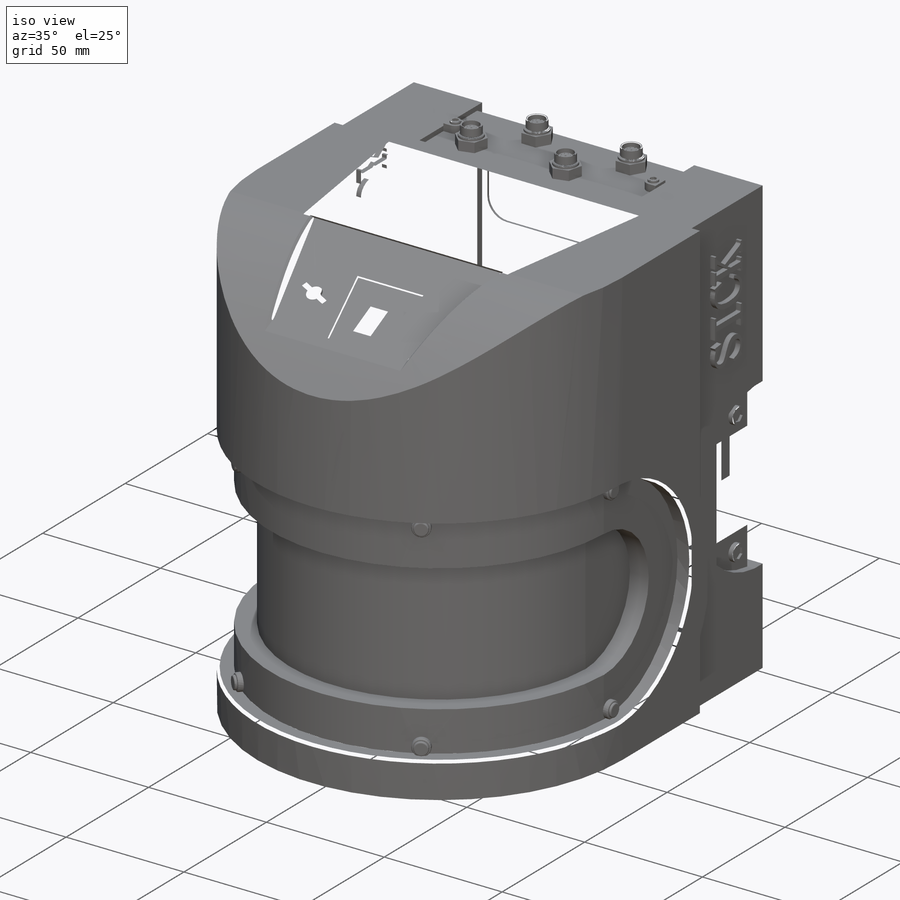
[diagram: iso view]
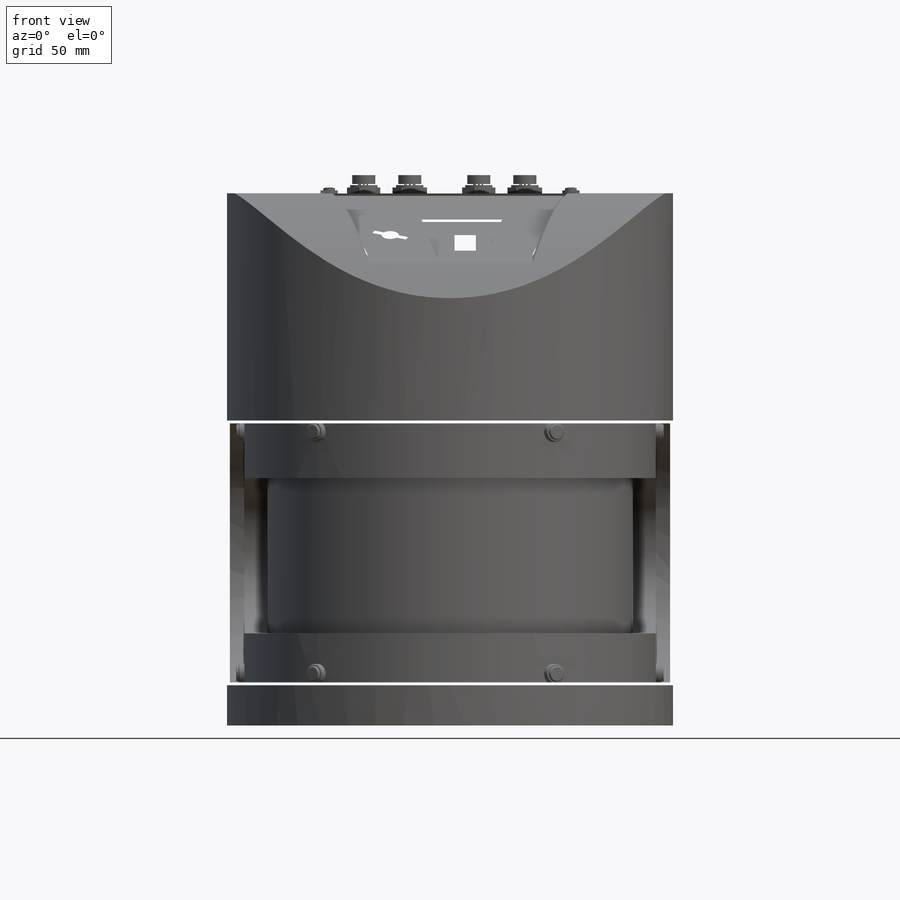
[diagram: front view]
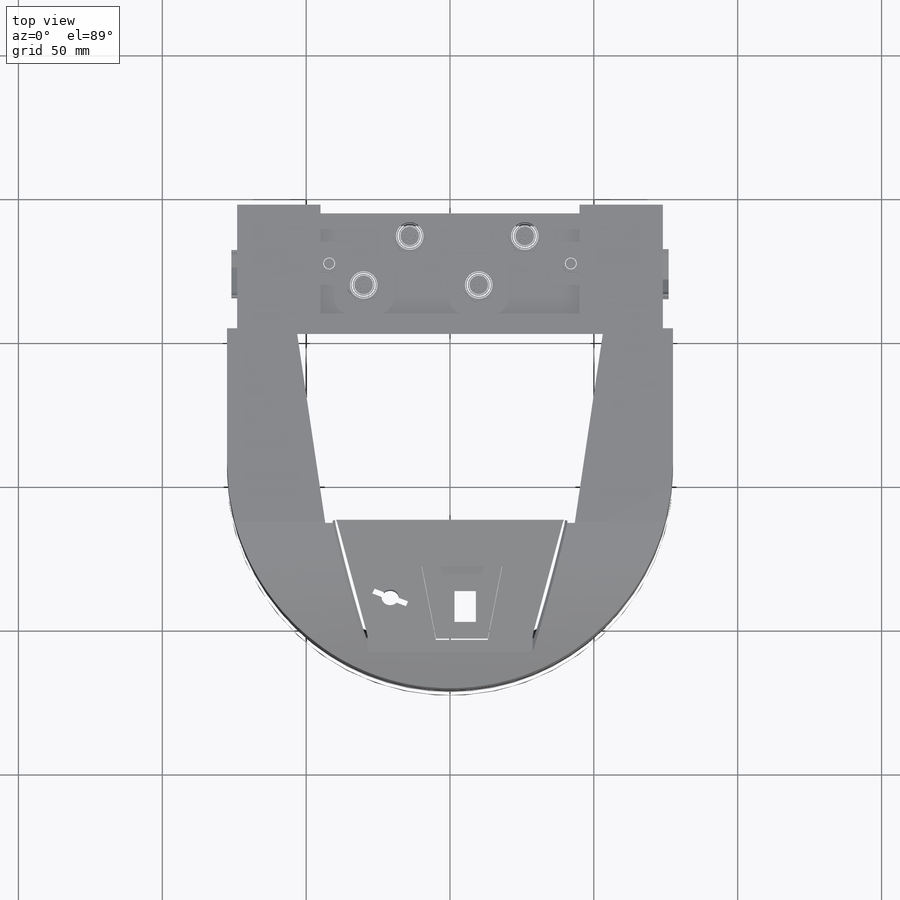
[diagram: top view]
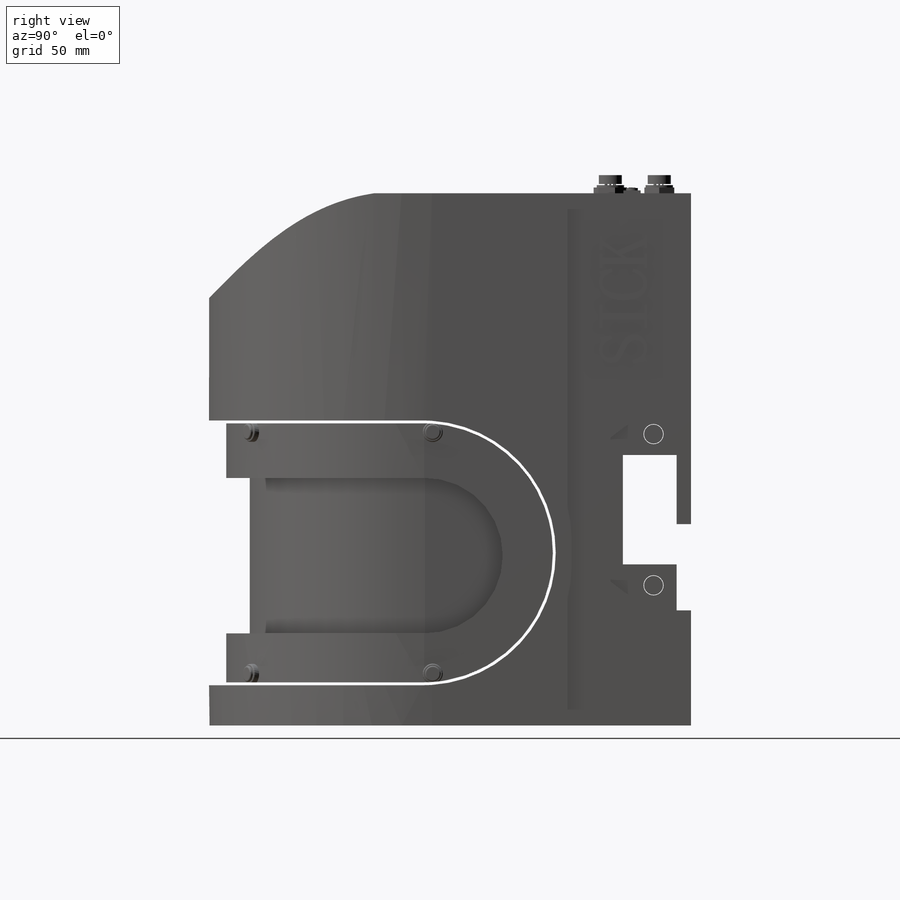
[diagram: right view]
SOLIDWORKS PART (.sldprt)
format: sldprt  version: not decoded by parser v0  size: 3,123,200 bytes
history: native  units: mm
features: sketch x66, extrude x31, cut_extrude x30, plane x11, pattern_linear x11, mirror x8, fillet x5, material x1, chamfer x1 (+10 scaffold rows collapsed)
feature tree (174):
  scaffold x10  (default folders/planes/origin — collapsed)
  material  "材质 <未指定>"
  plane  "前视基准面"
  plane  "上视基准面"
  plane  "右视基准面"
  sketch  "草图1"  dims[D1=155.0mm D2=90.0mm]
  extrude  "凸台-拉伸1"  Depth=185mm
  sketch  "草图2"
  extrude  "凸台-拉伸2"  Depth=185mm
  sketch  "草图3"  dims[D1=43.0mm D2=74.0mm D3=90.0mm]
  cut_extrude  "切除-拉伸1"  Depth=185mm
  sketch  "草图4"  dims[D1=40.0mm D2=70.0mm D3=24.0mm D4=40.0mm D5=60.0mm]
  cut_extrude  "切除-拉伸2"  Depth=5mm
  sketch  "草图5"  dims[D1=25.0mm D2=28.0mm]
  cut_extrude  "切除-拉伸3"  Depth=3mm
  mirror  "镜向1"
  sketch  "草图6"
  cut_extrude  "切除-拉伸4"  Depth=194mm
  sketch  "草图7"  dims[c1.D2=~104.045065mm c2.D2=~171.96219deg c3.D2=~105.077343mm c4.D2=5.0deg c4.D3=~106.402331mm c5.D3=5.0deg c5.D1=6.0mm c5.D4=6.0mm]
  cut_extrude  "切除-拉伸5"  Depth=90mm
  sketch  "草图8"  dims[D1=50.0mm]
  cut_extrude  "切除-拉伸6"  Depth=6mm
  mirror  "镜向2"
  sketch  "草图9"  dims[D1=6.0mm D2=14.0mm]
  cut_extrude  "切除-拉伸7"  Depth=48mm
  sketch  "草图10"
  cut_extrude  "切除-拉伸8"  Depth=8mm
  mirror  "镜向3"
  sketch  "草图11"  dims[D1=6.0mm D2=45.0mm]
  cut_extrude  "切除-拉伸9"  Depth=3mm
  sketch  "草图12"  dims[D1=38.0mm]
  cut_extrude  "切除-拉伸10"  Depth=2mm
  sketch  "草图13"  dims[D3=8.0mm D1=80.0mm D2=35.0mm]
  cut_extrude  "切除-拉伸11"  Depth=1mm
  sketch  "草图15"  dims[D1=3.0mm D2=3.0mm]
  extrude  "凸台-拉伸3"  Depth=3mm
  sketch  "草图16"
  extrude  "凸台-拉伸4"  Depth=1mm
  sketch  "草图17"
  cut_extrude  "切除-拉伸12"  Depth=1mm
  sketch  "草图18"  dims[D1=30.0mm D2=8.0mm D3=10.0mm D4=16.0mm D5=6.0mm D6=6.0mm]
  extrude  "凸台-拉伸5"  Depth=4mm
  sketch  "草图19"  dims[D1=9.5mm D2=9.5mm]
  extrude  "凸台-拉伸6"  Depth=1mm
  sketch  "草图20"  dims[D1=8.0mm D2=8.0mm]
  extrude  "凸台-拉伸7"  Depth=3mm
  sketch  "草图21"  dims[D1=8.0mm D2=8.0mm]
  cut_extrude  "切除-拉伸13"  Depth=2.5mm
  sketch  "草图22"  dims[D1=5.0mm D2=5.0mm]
  extrude  "凸台-拉伸8"  Depth=1.5mm
  sketch  "草图23"  dims[D1=0.6mm]
  cut_extrude  "切除-拉伸14"  Depth=1.5mm
  sketch  "草图24"  dims[D1=0.6mm]
  cut_extrude  "切除-拉伸15"  Depth=1.5mm
  sketch  "草图25"  dims[D1=4.0mm D3=0.4mm D4=0.4mm D5=0.4mm D6=0.4mm D7=0.4mm D8=0.4mm D9=0.4mm D10=3.5mm D2=8.0]
  cut_extrude  "切除-拉伸16"  Depth=3mm
  sketch  "草图26"
  cut_extrude  "切除-拉伸17"  Depth=2mm
  sketch  "草图27"
  cut_extrude  "切除-拉伸18"  Depth=2mm
  sketch  "草图28"  dims[D2=3.5mm D3=0.4mm D1=8.0 D4=8.0]
  cut_extrude  "切除-拉伸19"  Depth=5mm
  sketch  "草图29"  dims[D1=6.5mm D2=6.5mm]
  extrude  "凸台-拉伸9"  Depth=3mm
  pattern_linear  "阵列(线性)1"  Count1=2 Count2=1 Spacing1=40mm Spacing2=10mm
  mirror  "镜向4"
  sketch  "草图30"  dims[D1=20.0mm]
  cut_extrude  "切除-拉伸20"  Depth=1mm
  sketch  "草图31"  dims[D1=7.0mm D3=7.0mm D2=8.0mm]
  extrude  "凸台-拉伸10"  Depth=2mm
  sketch  "草图32"  dims[D1=2.4mm D2=2.4mm]
  cut_extrude  "切除-拉伸21"  Depth=1mm
  mirror  "镜向5"
  sketch  "草图33"  dims[c1.D3=7.0mm c1.D1=25.0mm c1.D2=45.0mm c2.D3=~7.612115mm c2.D1=3.0mm c2.D2=3.0mm]
  extrude  "凸台-拉伸11"  Depth=2mm
  sketch  "草图34"  dims[D1=5.5mm D2=~2.911902mm]
  extrude  "凸台-拉伸12"  Depth=0.8mm
  fillet  "圆角3"  Radius=0.5mm
  plane  "基准面1"
  mirror  "镜向6"
  mirror  "镜向7"
  plane  "基准面2"
  plane  "基准面3"
  fillet  "基准轴2"  [1 undecoded]
  pattern_linear  "圆角4"  Spacing1=0.5mm  [1 undecoded]
  sketch  "草图35"  dims[D2=7.0mm D1=2.91mm]
  extrude  "凸台-拉伸13"  Depth=4mm
  sketch  "草图36"  dims[D1=5.5mm]
  extrude  "凸台-拉伸14"  Depth=1mm
  plane  "基准面4"
  plane  "基准面5"
  fillet  "基准轴3"  [1 undecoded]
  sketch  "草图37"  dims[D2=7.0mm D1=2.91mm]
  extrude  "凸台-拉伸15"  Depth=4mm
  sketch  "草图38"  dims[D1=5.5mm]
  extrude  "凸台-拉伸16"  Depth=1mm
  pattern_linear  "圆角5"  Spacing1=0.5mm  [1 undecoded]
  mirror  "镜向8"
  sketch  "草图39"  dims[D3=2.0mm D1=29.0mm D2=35.0mm]
  cut_extrude  "切除-拉伸22"  Depth=1mm
  sketch  "草图40"  dims[D3=2.0mm D1=18.0mm D2=18.0mm]
  cut_extrude  "切除-拉伸23"  Depth=0.5mm
  sketch  "草图41"  dims[D1=15.0mm]
  sketch  "草图42"  dims[D1=~62.003247mm]
  extrude  "凸台-拉伸17"  Depth=2mm
  sketch  "草图44"
  sketch  "草图43"  dims[D1=~62.003247mm]
  extrude  "凸台-拉伸18"  Depth=2mm
  sketch  "草图45"  dims[D1=38.0mm D2=~18.671023mm]
  cut_extrude  "切除-拉伸24"  Depth=0.5mm
  pattern_linear  "圆角6"  Spacing1=0.2mm  [1 undecoded]
  pattern_linear  "圆角22"  Spacing1=0.2mm  [1 undecoded]
  sketch  "草图46"
  pattern_linear  "圆角23"  Spacing1=0.2mm  [1 undecoded]
  pattern_linear  "圆角24"  Spacing1=0.2mm  [1 undecoded]
  pattern_linear  "圆角25"  Spacing1=1mm  [1 undecoded]
  plane  "基准面6"
  sketch  "草图47"  dims[D1=40.0mm D2=40.0mm D3=25.0mm D4=25.0mm]
  cut_extrude  "切除-拉伸27"  Depth=1mm
  chamfer  "倒角1"  Distance=1mm Angle=45deg
  pattern_linear  "圆角26"  Spacing1=0.5mm  [1 undecoded]
  pattern_linear  "圆角27"  Spacing1=0.5mm  [1 undecoded]
  pattern_linear  "圆角28"  Spacing1=0.5mm  [1 undecoded]
  sketch  "草图48"  dims[D1=6.0mm]
  extrude  "凸台-拉伸19"  Depth=1mm
  sketch  "草图49"  dims[D1=16.0mm D2=15.0mm D3=0.2mm D4=0.4mm D5=7.5mm]
  extrude  "凸台-拉伸20"  Depth=2mm
  fillet  "基准轴4"  [1 undecoded]
  plane  "基准面7"
  sketch  "草图51"  dims[D1=14.0mm]
  extrude  "凸台-拉伸21"  Depth=2mm
  sketch  "草图52"  dims[c1.D1=~24.911535mm c2.D1=100.0deg c2.D2=~24.669098mm c3.D2=100.0deg c3.D3=28.0mm c3.D4=18.0mm]
  cut_extrude  "切除-拉伸28"  Depth=1mm
  sketch  "草图53"  dims[D10=0.5mm D11=0.5mm D1=7.2mm D2=12.0mm D3=3.75mm D4=4.5mm D5=4.0mm D6=4.0mm D7=4.0mm D8=4.0mm D9=0.5mm]
  extrude  "凸台-拉伸22"  Depth=1mm
  sketch  "草图54"  dims[D1=1.0mm D2=1.0mm D3=1.0mm D4=1.0mm D5=0.2mm]
  extrude  "凸台-拉伸23"  Depth=1mm
  sketch  "草图55"  dims[D1=0.0mm]
  extrude  "凸台-拉伸24"  Depth=0.1mm
  sketch  "草图56"  dims[D1=3.0mm]
  cut_extrude  "切除-拉伸29"  Depth=0.2mm
  sketch  "草图57"  dims[D1=1.0mm D2=1.0mm D3=0.7mm]
  extrude  "凸台-拉伸25"  Depth=0.2mm
  sketch  "草图58"
  extrude  "凸台-拉伸29"  Depth=0.1mm
  sketch  "草图59"  dims[D1=3.0mm]
  cut_extrude  "切除-拉伸30"  Depth=0.2mm
  sketch  "草图60"  dims[D1=1.2mm D2=1.2mm D3=0.58mm D4=1.0mm]
  extrude  "凸台-拉伸30"  Depth=0.2mm
  sketch  "草图61"
  extrude  "凸台-拉伸31"  Depth=0.1mm
  sketch  "草图62"  dims[D1=3.0mm D2=3.0mm]
  cut_extrude  "切除-拉伸31"  Depth=0.2mm
  sketch  "草图63"  dims[D1=1.2mm D2=1.2mm D3=1.2mm D4=1.2mm D5=0.65mm]
  sketch  "草图64"
  extrude  "凸台-拉伸32"  Depth=0.2mm
  sketch  "草图65"
  extrude  "凸台-拉伸33"  Depth=0.2mm
  sketch  "草图66"
  extrude  "凸台-拉伸34"  Depth=0.1mm
  cut_extrude  "切除-拉伸32"  Depth=0.1mm
  sketch  "URDF Reference"
  plane  "基准面8"
  fillet  "基准轴5"  [1 undecoded]
  sketch  "坐标系1"
decode coverage: 124 of 152 modeling features carry decoded parameters
note: ~ marks probable driven/reference dimensions
note: 14 parameter values undecoded
summary: no parameter record found for 4 features
note: suppression state not decoded; provenance and decode notes live in map.json
